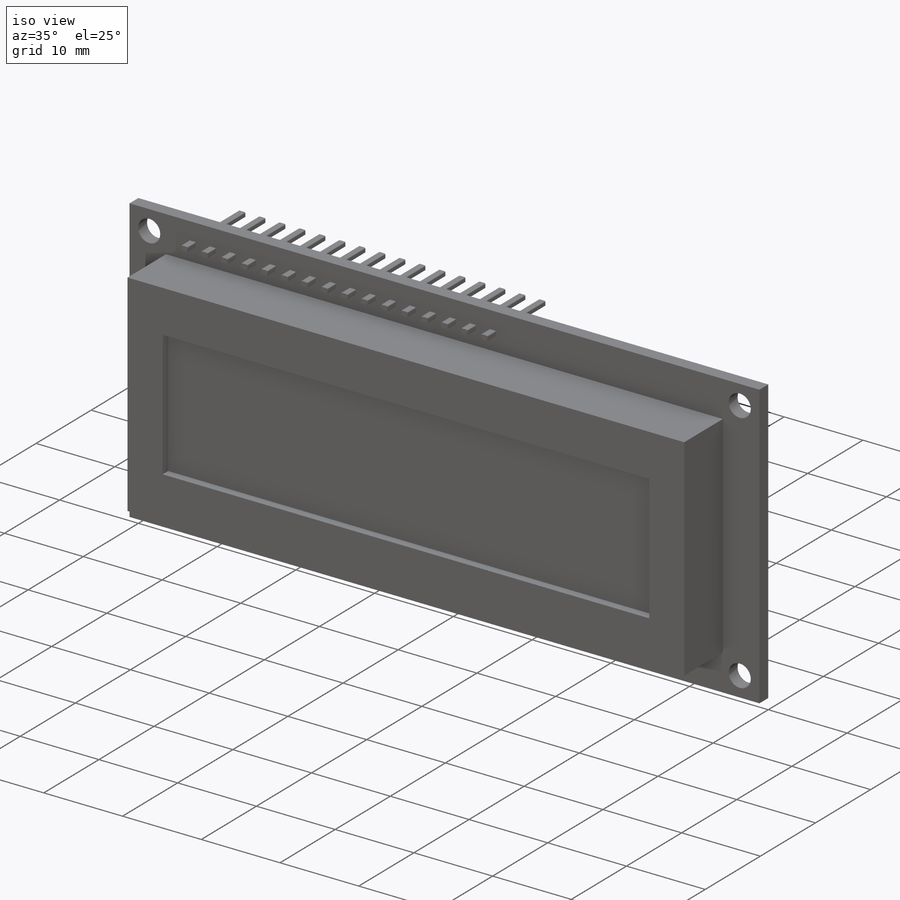
[diagram: iso view]
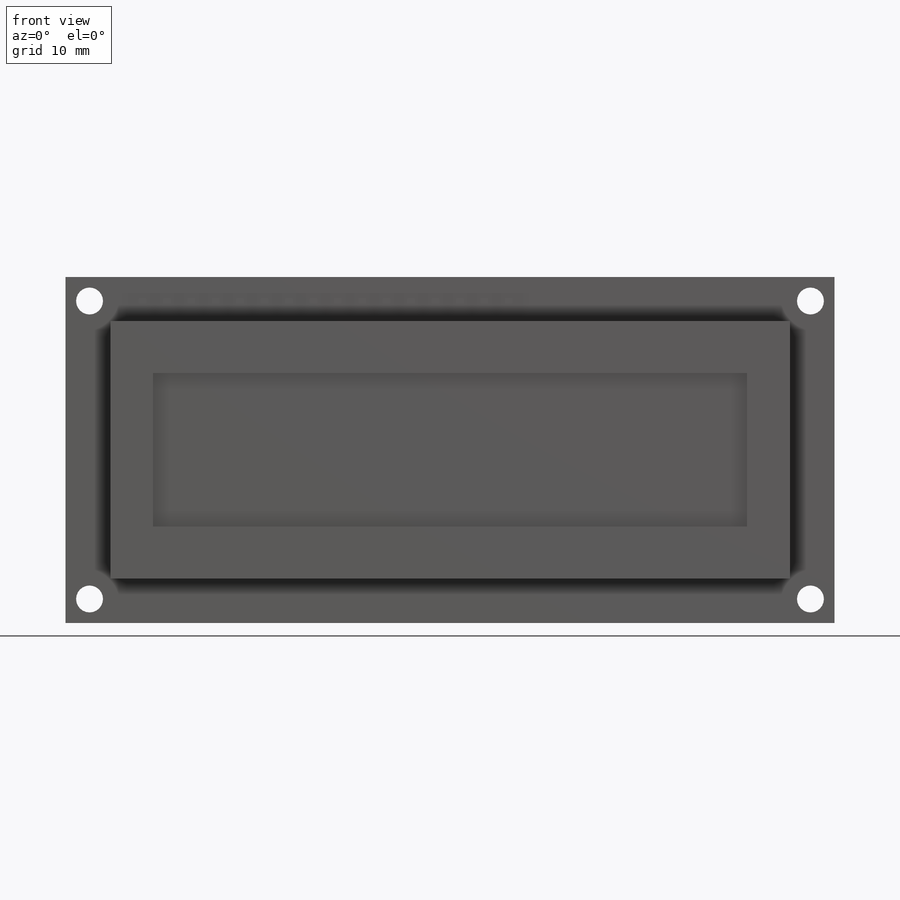
[diagram: front view]
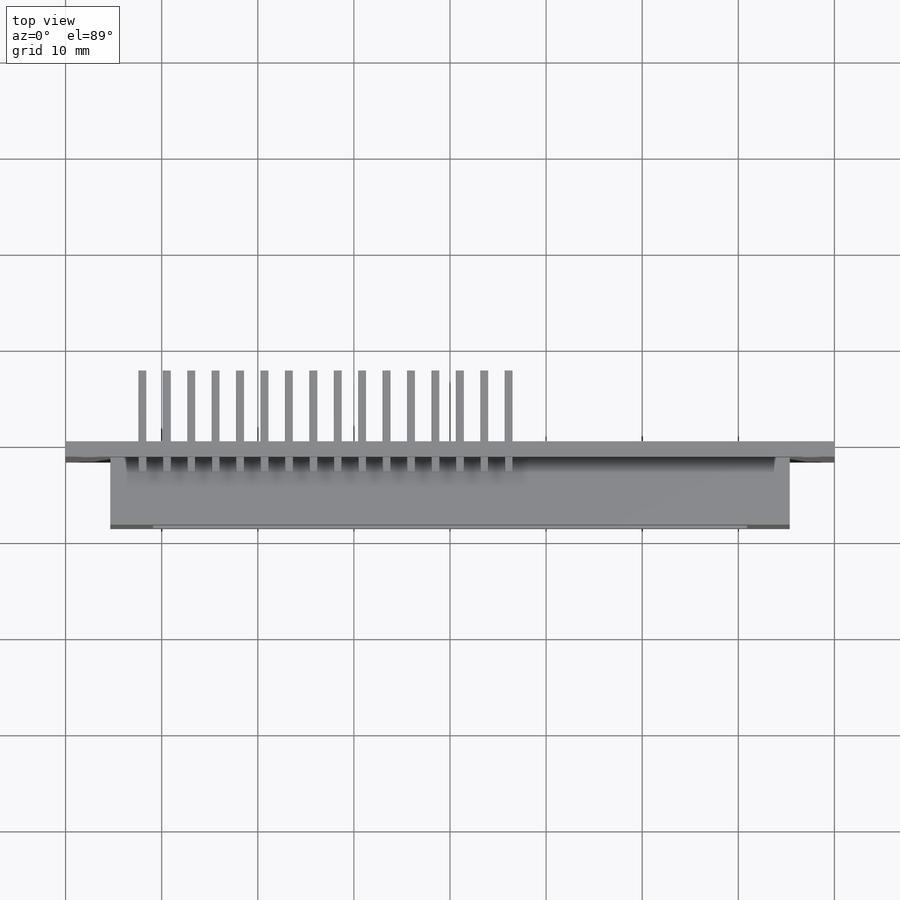
[diagram: top view]
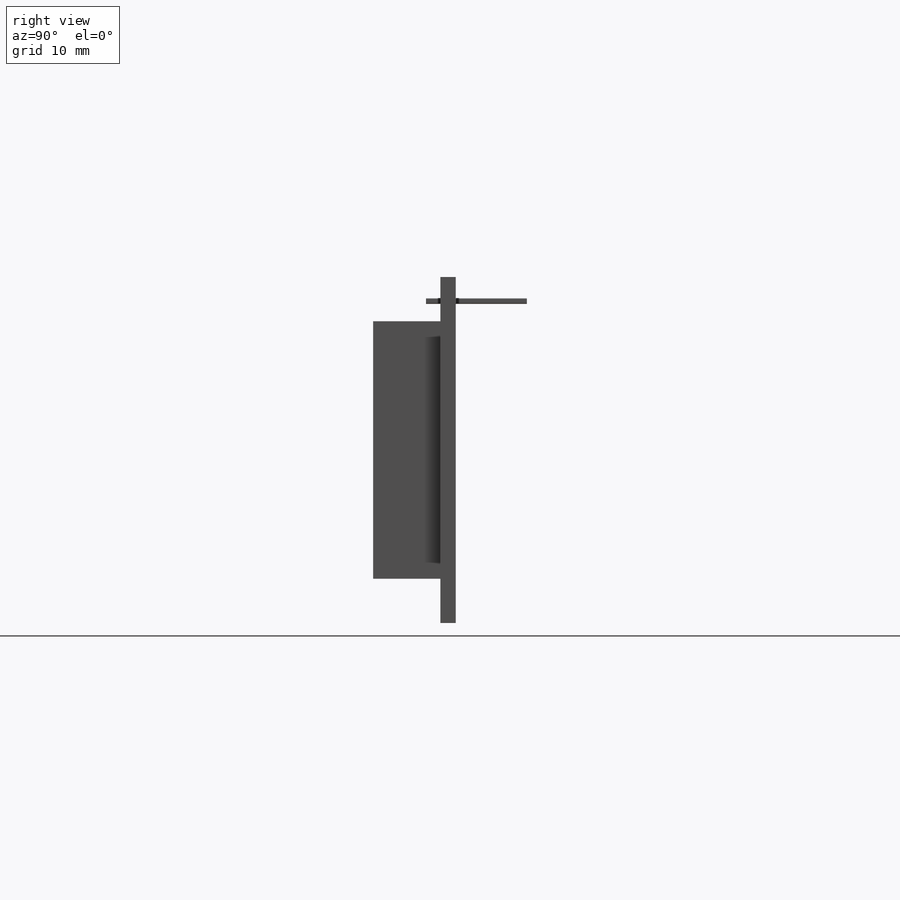
[diagram: right view]
SOLIDWORKS PART (.sldprt)
format: sldprt  version: not decoded by parser v0  size: 454,656 bytes
history: native  units: mm
features: sketch x4, plane x3, extrude x3, material x1, cut_extrude x1 (+10 scaffold rows collapsed)
feature tree (22):
  scaffold x10  (default folders/planes/origin — collapsed)
  material  "Matériau <non spécifié>"
  plane  "Plan de face"
  plane  "Plan de dessus"
  plane  "Plan de droite"
  sketch  "Esquisse1"  dims[c1.D3=2.8mm c1.D1=~40.026404mm c1.D2=~92.987529mm c2.D1=80.0mm c2.D2=36.0mm c2.D4=2.5mm c2.D5=~5.179344mm c3.D5=90.0deg c4.D5=2.5mm c4.D6=~0.113301mm]
  extrude  "Boss.-Extru.1"  Depth=1.6mm
  sketch  "Esquisse2"  dims[c1.D1=~23.819715mm c1.D2=~60.621175mm c2.D1=70.7mm c2.D2=26.8mm c2.D3=13.4mm c2.D4=35.35mm]
  extrude  "Boss.-Extru.2"  Depth=7mm
  sketch  "Esquisse3"  dims[c1.D1=~19.174871mm c1.D2=~59.430189mm c2.D1=61.8mm c2.D2=16.0mm c2.D3=70.7mm c3.D3=90.0deg c4.D3=8.0mm c4.D4=30.9mm]
  cut_extrude  "Enlèv. mat.-Extru.1"  Depth=1mm
  sketch  "Esquisse4"  dims[c1.D1=~6.243563mm c1.D2=8.0mm c1.D4=~0.583057mm c1.D5=~0.800964mm c2.D4=~0.585879mm c2.D2=16.0]
  extrude  "Boss.-Extru.3"  Depth=1.5mm
decode coverage: 8 of 8 modeling features carry decoded parameters
note: ~ marks probable driven/reference dimensions
note: suppression state not decoded; provenance and decode notes live in map.json
